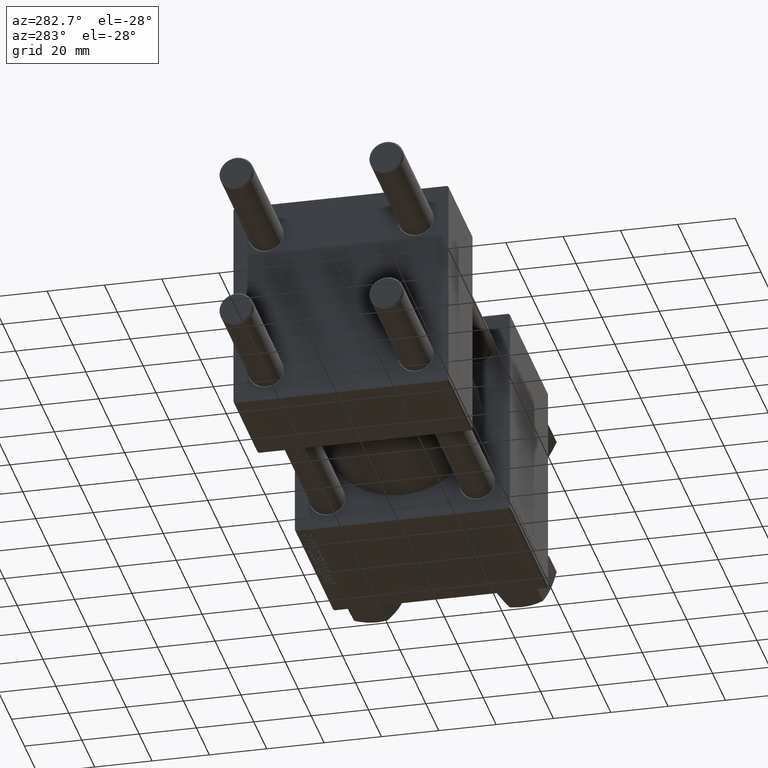
[diagram: clean part render]
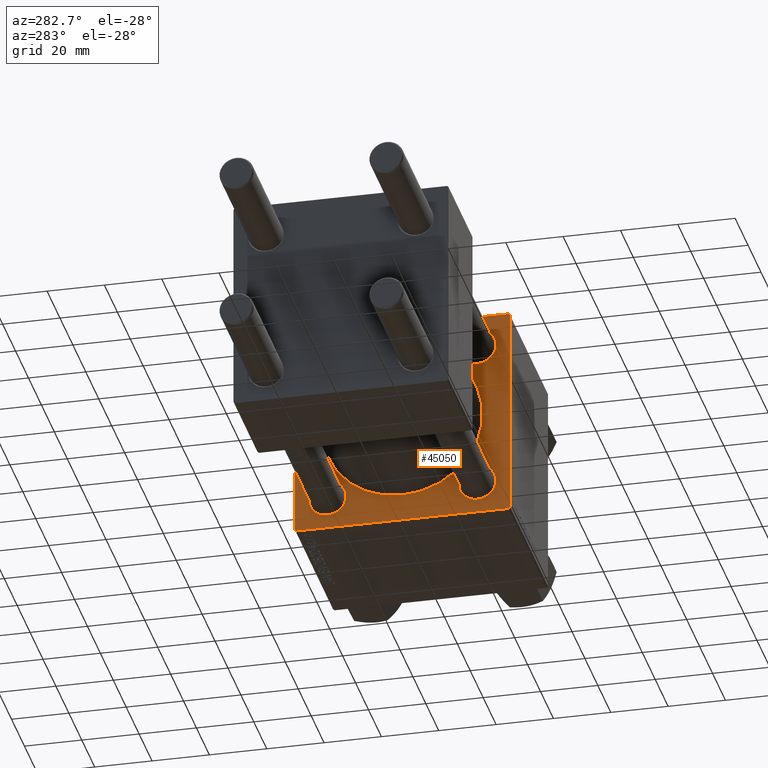
[diagram: same view with one face highlighted and labeled with its STEP entity id]
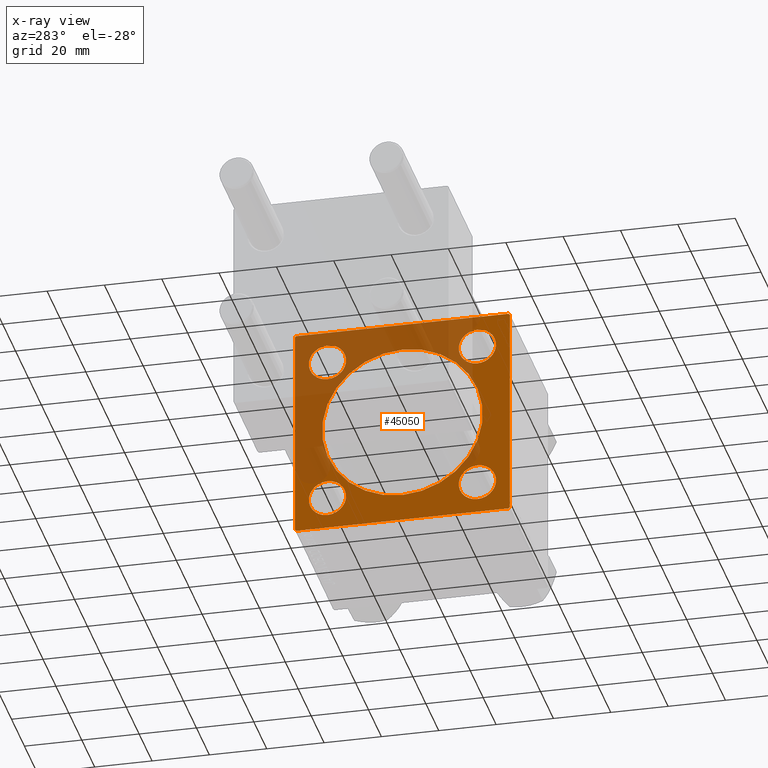
[diagram: x-ray of the same camera — body ghosted, the highlighted face saturated]
A machine part, auxiliary view. The second image highlights one B-rep face of the part: STEP entity #45050.
The next image is the same camera in x-ray: the body ghosted, the highlighted face saturated — about 45% of this face is hidden behind the body in this view.
In plain terms, the highlighted planar face has unit normal (-1, 0, 0).
Its self-contained STEP definition (entity closure, byte-faithful):
#107 = DIRECTION ( 'NONE',  ( 0.000000000000000000, 0.000000000000000000, 1.000000000000000000 ) ) ;
#126 = DIRECTION ( 'NONE',  ( 1.000000000000000000, 0.000000000000000000, -0.000000000000000000 ) ) ;
#279 = AXIS2_PLACEMENT_3D ( 'NONE', #36438, #43540, #12943 ) ;
#358 = CARTESIAN_POINT ( 'NONE',  ( 95.00000000000000000, 26.14999999999999858, 26.15000000000000213 ) ) ;
#733 = AXIS2_PLACEMENT_3D ( 'NONE', #9629, #40197, #32367 ) ;
#878 = EDGE_CURVE ( 'NONE', #44764, #27899, #11656, .T. ) ;
#2352 = ORIENTED_EDGE ( 'NONE', *, *, #39737, .T. ) ;
#2380 = EDGE_CURVE ( 'NONE', #28652, #15804, #48157, .T. ) ;
#2920 = VERTEX_POINT ( 'NONE', #16913 ) ;
#3399 = LINE ( 'NONE', #41308, #43072 ) ;
#3496 = VECTOR ( 'NONE', #30602, 1000.000000000000000 ) ;
#3823 = CIRCLE ( 'NONE', #45815, 6.500000000000008882 ) ;
#4364 = VECTOR ( 'NONE', #24963, 999.9999999999998863 ) ;
#4863 = ORIENTED_EDGE ( 'NONE', *, *, #26436, .F. ) ;
#4899 = EDGE_LOOP ( 'NONE', ( #19759, #38048 ) ) ;
#5008 = EDGE_CURVE ( 'NONE', #15804, #28652, #7116, .T. ) ;
#5203 = CARTESIAN_POINT ( 'NONE',  ( 95.00000000000000000, 37.50000000000000000, 36.99999999999999289 ) ) ;
#5815 = CIRCLE ( 'NONE', #25177, 28.00000000000000000 ) ;
#6083 = FACE_BOUND ( 'NONE', #34192, .T. ) ;
#6203 = DIRECTION ( 'NONE',  ( 0.000000000000000000, 0.000000000000000000, 1.000000000000000000 ) ) ;
#6348 = CARTESIAN_POINT ( 'NONE',  ( 95.00000000000000000, -26.14999999999999147, 26.15000000000000924 ) ) ;
#6793 = VERTEX_POINT ( 'NONE', #18017 ) ;
#7116 = CIRCLE ( 'NONE', #33724, 6.500000000000008882 ) ;
#7475 = EDGE_CURVE ( 'NONE', #28910, #34253, #3823, .T. ) ;
#7781 = VERTEX_POINT ( 'NONE', #35131 ) ;
#7969 = DIRECTION ( 'NONE',  ( 0.000000000000000000, 0.000000000000000000, 1.000000000000000000 ) ) ;
#8019 = CIRCLE ( 'NONE', #49164, 6.500000000000002665 ) ;
#8741 = VECTOR ( 'NONE', #19874, 1000.000000000000114 ) ;
#8919 = CIRCLE ( 'NONE', #34695, 6.500000000000008882 ) ;
#8940 = EDGE_CURVE ( 'NONE', #22556, #42355, #34807, .T. ) ;
#9629 = CARTESIAN_POINT ( 'NONE',  ( 95.00000000000000000, 0.000000000000000000, 0.000000000000000000 ) ) ;
#10243 = CARTESIAN_POINT ( 'NONE',  ( 95.00000000000000000, -26.14999999999999147, -19.65000000000000213 ) ) ;
#10418 = CARTESIAN_POINT ( 'NONE',  ( 95.00000000000000000, -37.50000000000000711, -37.00000000000000711 ) ) ;
#11656 = LINE ( 'NONE', #19227, #3496 ) ;
#11770 = ORIENTED_EDGE ( 'NONE', *, *, #2380, .T. ) ;
#12286 = AXIS2_PLACEMENT_3D ( 'NONE', #6348, #17220, #13922 ) ;
#12454 = EDGE_CURVE ( 'NONE', #36844, #39833, #8019, .T. ) ;
#12943 = DIRECTION ( 'NONE',  ( 0.000000000000000000, 0.000000000000000000, 1.000000000000000000 ) ) ;
#13038 = CARTESIAN_POINT ( 'NONE',  ( 95.00000000000000000, 26.14999999999999858, -26.15000000000000213 ) ) ;
#13300 = LINE ( 'NONE', #43394, #25035 ) ;
#13661 = FACE_BOUND ( 'NONE', #4899, .T. ) ;
#13907 = FACE_OUTER_BOUND ( 'NONE', #46842, .T. ) ;
#13922 = DIRECTION ( 'NONE',  ( 0.000000000000000000, 0.000000000000000000, 1.000000000000000000 ) ) ;
#14032 = CARTESIAN_POINT ( 'NONE',  ( 95.00000000000000000, 26.14999999999999858, 32.65000000000001279 ) ) ;
#14185 = CIRCLE ( 'NONE', #31134, 28.00000000000000000 ) ;
#14565 = EDGE_CURVE ( 'NONE', #6793, #25830, #13300, .T. ) ;
#14588 = VERTEX_POINT ( 'NONE', #28466 ) ;
#14817 = EDGE_CURVE ( 'NONE', #34253, #28910, #8919, .T. ) ;
#15289 = CARTESIAN_POINT ( 'NONE',  ( 95.00000000000000000, -26.14999999999999147, -26.15000000000000924 ) ) ;
#15299 = CIRCLE ( 'NONE', #25007, 6.500000000000002665 ) ;
#15804 = VERTEX_POINT ( 'NONE', #19393 ) ;
#16202 = DIRECTION ( 'NONE',  ( 1.000000000000000000, 0.000000000000000000, 0.000000000000000000 ) ) ;
#16222 = ORIENTED_EDGE ( 'NONE', *, *, #8940, .T. ) ;
#16375 = ORIENTED_EDGE ( 'NONE', *, *, #27812, .T. ) ;
#16414 = DIRECTION ( 'NONE',  ( 0.000000000000000000, -0.7071067811865671127, 0.7071067811865279218 ) ) ;
#16449 = CARTESIAN_POINT ( 'NONE',  ( 95.00000000000000000, 0.000000000000000000, 0.000000000000000000 ) ) ;
#16471 = EDGE_LOOP ( 'NONE', ( #18586, #17527 ) ) ;
#16547 = VECTOR ( 'NONE', #16414, 1000.000000000000000 ) ;
#16913 = CARTESIAN_POINT ( 'NONE',  ( 95.00000000000000000, 0.000000000000000000, 28.00000000000000000 ) ) ;
#17203 = FACE_BOUND ( 'NONE', #47426, .T. ) ;
#17220 = DIRECTION ( 'NONE',  ( 1.000000000000000000, 0.000000000000000000, -0.000000000000000000 ) ) ;
#17333 = CARTESIAN_POINT ( 'NONE',  ( 95.00000000000000000, 3.429011037612588487E-15, -28.00000000000000000 ) ) ;
#17442 = FACE_BOUND ( 'NONE', #27342, .T. ) ;
#17527 = ORIENTED_EDGE ( 'NONE', *, *, #23693, .T. ) ;
#17943 = PLANE ( 'NONE',  #733 ) ;
#18017 = CARTESIAN_POINT ( 'NONE',  ( 95.00000000000000000, 37.00000000000000000, -37.50000000000000000 ) ) ;
#18026 = CARTESIAN_POINT ( 'NONE',  ( 95.00000000000000000, -26.14999999999999147, -26.15000000000000924 ) ) ;
#18125 = ORIENTED_EDGE ( 'NONE', *, *, #14565, .T. ) ;
#18431 = EDGE_CURVE ( 'NONE', #42135, #2920, #5815, .T. ) ;
#18586 = ORIENTED_EDGE ( 'NONE', *, *, #24964, .T. ) ;
#19227 = CARTESIAN_POINT ( 'NONE',  ( 95.00000000000000000, 37.50000000000000000, 37.49999999999999289 ) ) ;
#19393 = CARTESIAN_POINT ( 'NONE',  ( 95.00000000000000000, 26.14999999999999858, -32.65000000000001279 ) ) ;
#19759 = ORIENTED_EDGE ( 'NONE', *, *, #7475, .T. ) ;
#19853 = CARTESIAN_POINT ( 'NONE',  ( 95.00000000000000000, -26.14999999999999147, -32.65000000000001990 ) ) ;
#19874 = DIRECTION ( 'NONE',  ( 0.000000000000000000, 0.7071067811865474617, -0.7071067811865474617 ) ) ;
#20188 = CARTESIAN_POINT ( 'NONE',  ( 95.00000000000000000, -37.24999999999896261, -37.25000000000103029 ) ) ;
#21421 = ORIENTED_EDGE ( 'NONE', *, *, #12454, .T. ) ;
#21659 = CARTESIAN_POINT ( 'NONE',  ( 95.00000000000000000, 37.25000000000026290, -37.24999999999974420 ) ) ;
#21718 = CARTESIAN_POINT ( 'NONE',  ( 95.00000000000000000, 26.14999999999999858, 26.15000000000000213 ) ) ;
#21789 = ORIENTED_EDGE ( 'NONE', *, *, #47669, .T. ) ;
#22556 = VERTEX_POINT ( 'NONE', #26326 ) ;
#22599 = DIRECTION ( 'NONE',  ( 1.000000000000000000, 0.000000000000000000, -0.000000000000000000 ) ) ;
#22956 = EDGE_CURVE ( 'NONE', #45470, #42355, #23484, .T. ) ;
#23484 = LINE ( 'NONE', #46983, #43766 ) ;
#23693 = EDGE_CURVE ( 'NONE', #7781, #14588, #46996, .T. ) ;
#24963 = DIRECTION ( 'NONE',  ( -0.000000000000000000, -0.7071067811865425767, -0.7071067811865525687 ) ) ;
#24964 = EDGE_CURVE ( 'NONE', #14588, #7781, #43036, .T. ) ;
#25007 = AXIS2_PLACEMENT_3D ( 'NONE', #21718, #29056, #38078 ) ;
#25035 = VECTOR ( 'NONE', #28962, 1000.000000000000000 ) ;
#25177 = AXIS2_PLACEMENT_3D ( 'NONE', #34360, #38395, #46478 ) ;
#25830 = VERTEX_POINT ( 'NONE', #27809 ) ;
#26166 = ORIENTED_EDGE ( 'NONE', *, *, #18431, .T. ) ;
#26326 = CARTESIAN_POINT ( 'NONE',  ( 95.00000000000000000, -37.50000000000000000, 36.99999999999995026 ) ) ;
#26436 = EDGE_CURVE ( 'NONE', #22556, #47496, #3399, .T. ) ;
#26677 = ORIENTED_EDGE ( 'NONE', *, *, #5008, .T. ) ;
#27342 = EDGE_LOOP ( 'NONE', ( #11770, #26677 ) ) ;
#27809 = CARTESIAN_POINT ( 'NONE',  ( 95.00000000000000000, -36.99999999999998579, -37.50000000000000000 ) ) ;
#27812 = EDGE_CURVE ( 'NONE', #27899, #6793, #37080, .T. ) ;
#27827 = CARTESIAN_POINT ( 'NONE',  ( 95.00000000000000000, 26.14999999999999858, -19.64999999999999503 ) ) ;
#27899 = VERTEX_POINT ( 'NONE', #29745 ) ;
#28025 = LINE ( 'NONE', #20188, #16547 ) ;
#28466 = CARTESIAN_POINT ( 'NONE',  ( 95.00000000000000000, -26.14999999999999147, 32.65000000000001279 ) ) ;
#28652 = VERTEX_POINT ( 'NONE', #27827 ) ;
#28760 = CARTESIAN_POINT ( 'NONE',  ( 95.00000000000000000, 37.00000000000000000, 37.49999999999999289 ) ) ;
#28826 = CARTESIAN_POINT ( 'NONE',  ( 95.00000000000000000, -36.99999999999997158, 37.49999999999997868 ) ) ;
#28908 = DIRECTION ( 'NONE',  ( 0.000000000000000000, 0.000000000000000000, 1.000000000000000000 ) ) ;
#28910 = VERTEX_POINT ( 'NONE', #10243 ) ;
#28962 = DIRECTION ( 'NONE',  ( 0.000000000000000000, -1.000000000000000000, 0.000000000000000000 ) ) ;
#29056 = DIRECTION ( 'NONE',  ( 1.000000000000000000, 0.000000000000000000, -0.000000000000000000 ) ) ;
#29154 = DIRECTION ( 'NONE',  ( 1.000000000000000000, 0.000000000000000000, -0.000000000000000000 ) ) ;
#29745 = CARTESIAN_POINT ( 'NONE',  ( 95.00000000000000000, 37.50000000000000000, -36.99999999999999289 ) ) ;
#30150 = EDGE_CURVE ( 'NONE', #25830, #47496, #28025, .T. ) ;
#30413 = DIRECTION ( 'NONE',  ( 0.000000000000000000, -9.251858538542972814E-17, -1.000000000000000000 ) ) ;
#30602 = DIRECTION ( 'NONE',  ( 0.000000000000000000, 0.000000000000000000, -1.000000000000000000 ) ) ;
#31063 = DIRECTION ( 'NONE',  ( 0.000000000000000000, -1.000000000000000000, -1.850371707708594316E-16 ) ) ;
#31134 = AXIS2_PLACEMENT_3D ( 'NONE', #16449, #16202, #34903 ) ;
#32367 = DIRECTION ( 'NONE',  ( 0.000000000000000000, 0.000000000000000000, 1.000000000000000000 ) ) ;
#32770 = DIRECTION ( 'NONE',  ( 0.000000000000000000, 0.000000000000000000, 1.000000000000000000 ) ) ;
#33021 = CARTESIAN_POINT ( 'NONE',  ( 95.00000000000000000, 26.14999999999999858, -26.15000000000000213 ) ) ;
#33724 = AXIS2_PLACEMENT_3D ( 'NONE', #33021, #45158, #32770 ) ;
#33774 = ORIENTED_EDGE ( 'NONE', *, *, #22956, .F. ) ;
#33794 = EDGE_CURVE ( 'NONE', #2920, #42135, #14185, .T. ) ;
#34192 = EDGE_LOOP ( 'NONE', ( #42488, #26166 ) ) ;
#34253 = VERTEX_POINT ( 'NONE', #19853 ) ;
#34360 = CARTESIAN_POINT ( 'NONE',  ( 95.00000000000000000, 0.000000000000000000, 0.000000000000000000 ) ) ;
#34695 = AXIS2_PLACEMENT_3D ( 'NONE', #15289, #126, #7969 ) ;
#34807 = LINE ( 'NONE', #46681, #36142 ) ;
#34903 = DIRECTION ( 'NONE',  ( 0.000000000000000000, 0.000000000000000000, -1.000000000000000000 ) ) ;
#35131 = CARTESIAN_POINT ( 'NONE',  ( 95.00000000000000000, -26.14999999999999147, 19.65000000000000568 ) ) ;
#36142 = VECTOR ( 'NONE', #42904, 1000.000000000000114 ) ;
#36161 = FACE_BOUND ( 'NONE', #16471, .T. ) ;
#36438 = CARTESIAN_POINT ( 'NONE',  ( 95.00000000000000000, -26.14999999999999147, 26.15000000000000924 ) ) ;
#36844 = VERTEX_POINT ( 'NONE', #37089 ) ;
#37024 = DIRECTION ( 'NONE',  ( 1.000000000000000000, 0.000000000000000000, -0.000000000000000000 ) ) ;
#37056 = ORIENTED_EDGE ( 'NONE', *, *, #878, .T. ) ;
#37080 = LINE ( 'NONE', #21659, #4364 ) ;
#37089 = CARTESIAN_POINT ( 'NONE',  ( 95.00000000000000000, 26.14999999999999858, 19.64999999999999858 ) ) ;
#38048 = ORIENTED_EDGE ( 'NONE', *, *, #14817, .T. ) ;
#38078 = DIRECTION ( 'NONE',  ( 0.000000000000000000, 0.000000000000000000, 1.000000000000000000 ) ) ;
#38395 = DIRECTION ( 'NONE',  ( 1.000000000000000000, 0.000000000000000000, 0.000000000000000000 ) ) ;
#39737 = EDGE_CURVE ( 'NONE', #45470, #44764, #47168, .T. ) ;
#39833 = VERTEX_POINT ( 'NONE', #14032 ) ;
#40197 = DIRECTION ( 'NONE',  ( -1.000000000000000000, -0.000000000000000000, 0.000000000000000000 ) ) ;
#41308 = CARTESIAN_POINT ( 'NONE',  ( 95.00000000000000000, -37.50000000000000000, 37.49999999999997868 ) ) ;
#42135 = VERTEX_POINT ( 'NONE', #17333 ) ;
#42355 = VERTEX_POINT ( 'NONE', #28826 ) ;
#42481 = ORIENTED_EDGE ( 'NONE', *, *, #30150, .T. ) ;
#42488 = ORIENTED_EDGE ( 'NONE', *, *, #33794, .T. ) ;
#42904 = DIRECTION ( 'NONE',  ( -0.000000000000000000, 0.7071067811865474617, 0.7071067811865474617 ) ) ;
#43036 = CIRCLE ( 'NONE', #279, 6.500000000000008882 ) ;
#43072 = VECTOR ( 'NONE', #30413, 1000.000000000000000 ) ;
#43394 = CARTESIAN_POINT ( 'NONE',  ( 95.00000000000000000, 37.50000000000000000, -37.50000000000000000 ) ) ;
#43540 = DIRECTION ( 'NONE',  ( 1.000000000000000000, 0.000000000000000000, -0.000000000000000000 ) ) ;
#43766 = VECTOR ( 'NONE', #31063, 1000.000000000000000 ) ;
#44764 = VERTEX_POINT ( 'NONE', #5203 ) ;
#45050 = ADVANCED_FACE ( 'NONE', ( #36161, #17203, #17442, #13661, #6083, #13907 ), #17943, .T. ) ;
#45158 = DIRECTION ( 'NONE',  ( 1.000000000000000000, 0.000000000000000000, -0.000000000000000000 ) ) ;
#45470 = VERTEX_POINT ( 'NONE', #28760 ) ;
#45815 = AXIS2_PLACEMENT_3D ( 'NONE', #18026, #29154, #28908 ) ;
#46478 = DIRECTION ( 'NONE',  ( 0.000000000000000000, 0.000000000000000000, -1.000000000000000000 ) ) ;
#46681 = CARTESIAN_POINT ( 'NONE',  ( 95.00000000000000000, -37.24999999999997158, 37.24999999999997158 ) ) ;
#46842 = EDGE_LOOP ( 'NONE', ( #18125, #42481, #4863, #16222, #33774, #2352, #37056, #16375 ) ) ;
#46983 = CARTESIAN_POINT ( 'NONE',  ( 95.00000000000000000, 37.50000000000000000, 37.49999999999999289 ) ) ;
#46996 = CIRCLE ( 'NONE', #12286, 6.500000000000008882 ) ;
#47168 = LINE ( 'NONE', #47668, #8741 ) ;
#47426 = EDGE_LOOP ( 'NONE', ( #21789, #21421 ) ) ;
#47496 = VERTEX_POINT ( 'NONE', #10418 ) ;
#47668 = CARTESIAN_POINT ( 'NONE',  ( 95.00000000000000000, 37.25000000000000000, 37.25000000000000000 ) ) ;
#47669 = EDGE_CURVE ( 'NONE', #39833, #36844, #15299, .T. ) ;
#48157 = CIRCLE ( 'NONE', #48948, 6.500000000000008882 ) ;
#48948 = AXIS2_PLACEMENT_3D ( 'NONE', #13038, #37024, #6203 ) ;
#49164 = AXIS2_PLACEMENT_3D ( 'NONE', #358, #22599, #107 ) ;